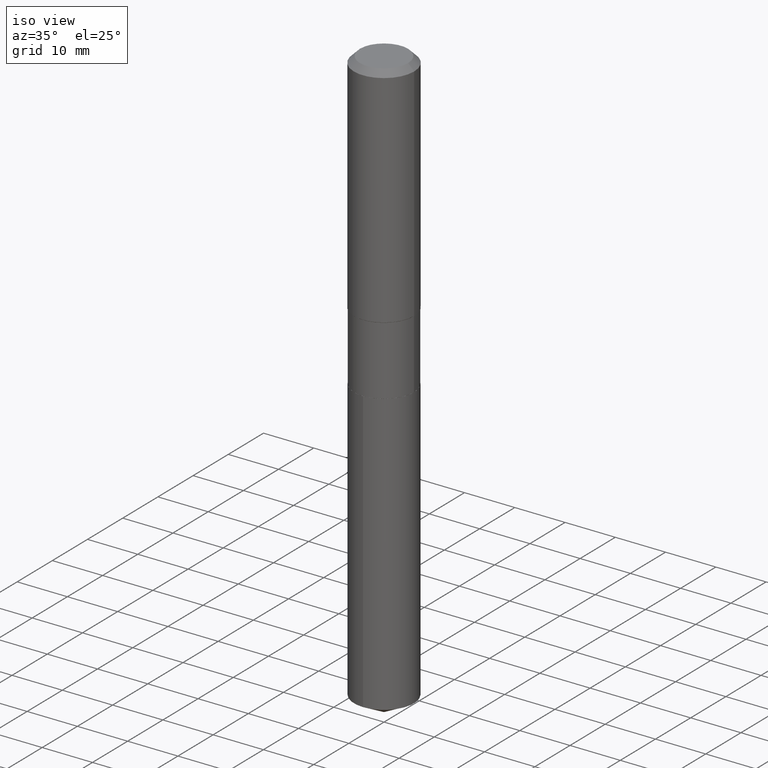
[diagram: clean part render]
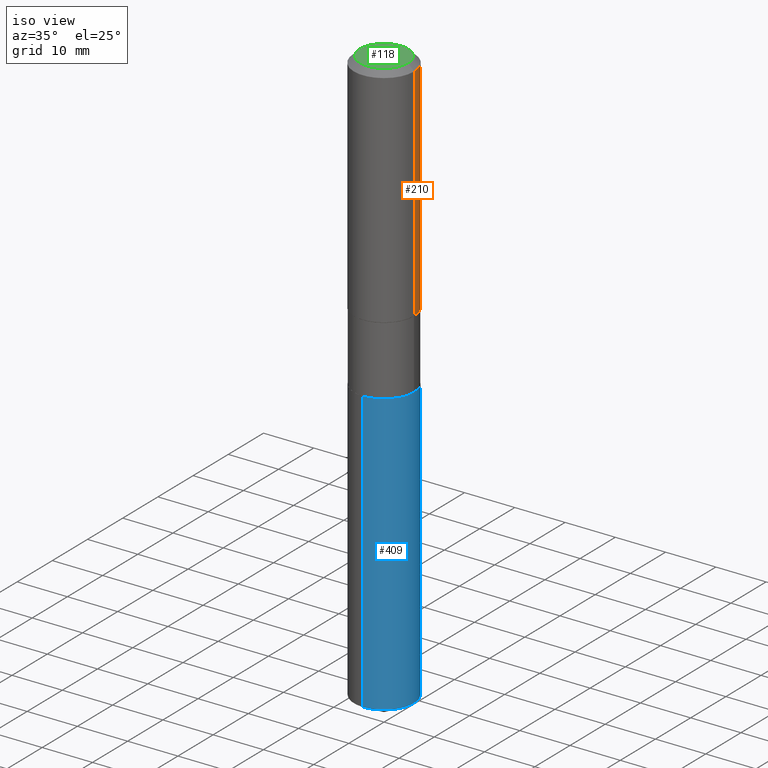
[diagram: same view with three faces highlighted in distinct colors, each labeled with its STEP entity id]
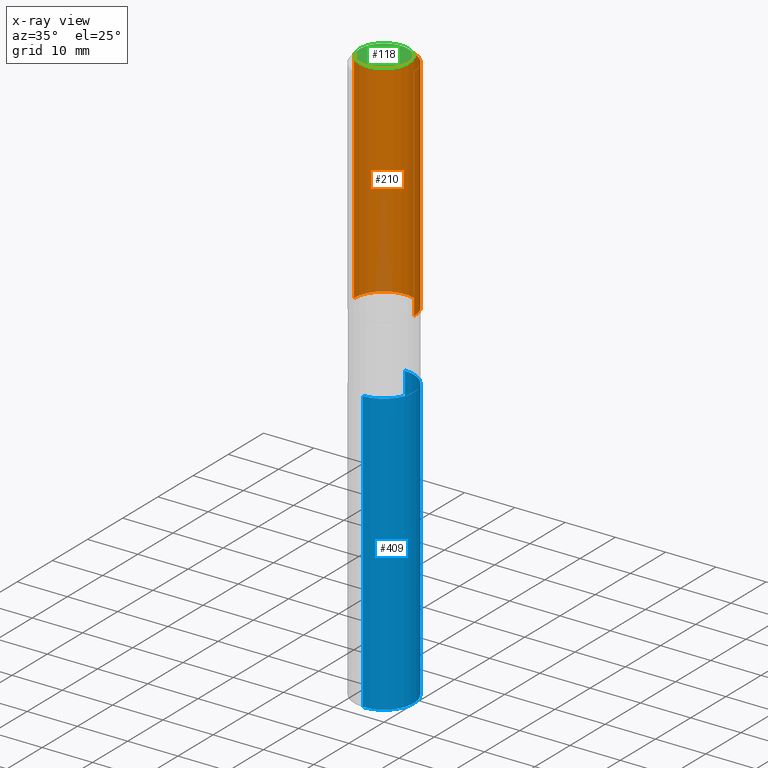
[diagram: x-ray of the same camera — body ghosted, the three highlighted faces saturated]
A machine part, iso view with three faces highlighted in distinct colors.
The next image is the same camera in x-ray (body ghosted, the three faces saturated) — at least one of them is partly hidden behind the body in this view.
Their STEP definitions:

[orange] entity #210 — the highlighted cylindrical surface (partial cylindrical patch) has radius 5.9995 mm, axis along (-0, 0, 1).
#5 = LINE ( 'NONE', #370, #457 ) ;
#7 = CIRCLE ( 'NONE', #440, 0.2362000000000002153 ) ;
#18 = AXIS2_PLACEMENT_3D ( 'NONE', #295, #218, #448 ) ;
#35 = VERTEX_POINT ( 'NONE', #125 ) ;
#42 = CARTESIAN_POINT ( 'NONE',  ( 0.2361999999999999933, -1.814313362916447440E-15, -0.04724000000000028177 ) ) ;
#61 = DIRECTION ( 'NONE',  ( -2.445468806185136597E-29, 3.491481338843145583E-15, 1.000000000000000000 ) ) ;
#63 = DIRECTION ( 'NONE',  ( 1.000000000000000000, -6.982962677686266711E-15, 0.000000000000000000 ) ) ;
#67 = CYLINDRICAL_SURFACE ( 'NONE', #368, 0.2362000000000001043 ) ;
#80 = EDGE_CURVE ( 'NONE', #143, #108, #7, .T. ) ;
#100 = DIRECTION ( 'NONE',  ( -2.445468806185136877E-29, 3.491481338843145188E-15, 1.000000000000000000 ) ) ;
#108 = VERTEX_POINT ( 'NONE', #483 ) ;
#125 = CARTESIAN_POINT ( 'NONE',  ( -0.2361999999999999933, -1.508355618690086330E-15, -0.04724000000000028177 ) ) ;
#129 = CARTESIAN_POINT ( 'NONE',  ( 0.000000000000000000, 0.000000000000000000, 0.000000000000000000 ) ) ;
#130 = DIRECTION ( 'NONE',  ( 1.000000000000000000, -6.982962677686266711E-15, 4.876176775795935793E-29 ) ) ;
#143 = VERTEX_POINT ( 'NONE', #320 ) ;
#157 = EDGE_CURVE ( 'NONE', #143, #337, #397, .T. ) ;
#165 = CARTESIAN_POINT ( 'NONE',  ( 0.2362000000000001043, -1.649375784469496920E-15, 1.151752954443000508E-29 ) ) ;
#177 = EDGE_LOOP ( 'NONE', ( #385, #184, #203, #223 ) ) ;
#184 = ORIENTED_EDGE ( 'NONE', *, *, #403, .T. ) ;
#203 = ORIENTED_EDGE ( 'NONE', *, *, #431, .F. ) ;
#210 = ADVANCED_FACE ( 'NONE', ( #401 ), #67, .T. ) ;
#218 = DIRECTION ( 'NONE',  ( -2.445468806185136597E-29, 3.491481338843145583E-15, 1.000000000000000000 ) ) ;
#223 = ORIENTED_EDGE ( 'NONE', *, *, #157, .F. ) ;
#243 = DIRECTION ( 'NONE',  ( -2.445468806185136597E-29, 3.491481338843145583E-15, 1.000000000000000000 ) ) ;
#252 = CARTESIAN_POINT ( 'NONE',  ( 4.348410357718098409E-29, -6.208377542663936505E-15, -1.778149999999999231 ) ) ;
#263 = CIRCLE ( 'NONE', #18, 0.2361999999999999933 ) ;
#287 = VECTOR ( 'NONE', #100, 39.37007874015748143 ) ;
#293 = DIRECTION ( 'NONE',  ( -2.445468806185136877E-29, 3.491481338843145188E-15, 1.000000000000000000 ) ) ;
#295 = CARTESIAN_POINT ( 'NONE',  ( 1.155239464041865506E-30, -1.649375784469511859E-16, -0.04724000000000028177 ) ) ;
#320 = CARTESIAN_POINT ( 'NONE',  ( 0.2362000000000002153, -7.857753327133433819E-15, -1.778149999999999231 ) ) ;
#337 = VERTEX_POINT ( 'NONE', #42 ) ;
#368 = AXIS2_PLACEMENT_3D ( 'NONE', #129, #243, #130 ) ;
#370 = CARTESIAN_POINT ( 'NONE',  ( -0.2362000000000001043, 1.678301941865357380E-15, -1.161852468318209317E-29 ) ) ;
#385 = ORIENTED_EDGE ( 'NONE', *, *, #80, .T. ) ;
#397 = LINE ( 'NONE', #165, #287 ) ;
#401 = FACE_OUTER_BOUND ( 'NONE', #177, .T. ) ;
#403 = EDGE_CURVE ( 'NONE', #108, #35, #5, .T. ) ;
#431 = EDGE_CURVE ( 'NONE', #337, #35, #263, .T. ) ;
#440 = AXIS2_PLACEMENT_3D ( 'NONE', #252, #61, #63 ) ;
#448 = DIRECTION ( 'NONE',  ( 1.000000000000000000, -6.982962677686266711E-15, 0.000000000000000000 ) ) ;
#457 = VECTOR ( 'NONE', #293, 39.37007874015748143 ) ;
#483 = CARTESIAN_POINT ( 'NONE',  ( -0.2362000000000002153, -4.530075600798577744E-15, -1.778149999999999231 ) ) ;

[blue] entity #409 — the highlighted cylindrical surface (edge-blend (fillet) strip) has radius 5.95 mm, axis along (-0, 0, 1).
#19 = VERTEX_POINT ( 'NONE', #160 ) ;
#26 = ORIENTED_EDGE ( 'NONE', *, *, #357, .F. ) ;
#32 = CARTESIAN_POINT ( 'NONE',  ( -1.635759007247950816E-15, -0.2342500000000080906, -2.318899999999998851 ) ) ;
#37 = VERTEX_POINT ( 'NONE', #348 ) ;
#40 = VECTOR ( 'NONE', #363, 39.37007874015748143 ) ;
#46 = LINE ( 'NONE', #418, #254 ) ;
#62 = EDGE_CURVE ( 'NONE', #37, #166, #46, .T. ) ;
#75 = DIRECTION ( 'NONE',  ( -2.445464024596642268E-29, 3.491488186350020456E-15, 1.000000000000000000 ) ) ;
#86 = CIRCLE ( 'NONE', #248, 0.2342500000000000138 ) ;
#139 = DIRECTION ( 'NONE',  ( -6.982962677686265133E-15, -1.000000000000000000, 3.498631368620187579E-15 ) ) ;
#141 = EDGE_CURVE ( 'NONE', #19, #37, #359, .T. ) ;
#160 = CARTESIAN_POINT ( 'NONE',  ( -1.635759007247896976E-15, -0.2342500000000157512, -4.521147065633297935 ) ) ;
#166 = VERTEX_POINT ( 'NONE', #280 ) ;
#178 = CYLINDRICAL_SURFACE ( 'NONE', #433, 0.2342500000000000138 ) ;
#188 = ORIENTED_EDGE ( 'NONE', *, *, #141, .T. ) ;
#191 = VERTEX_POINT ( 'NONE', #479 ) ;
#206 = LINE ( 'NONE', #32, #40 ) ;
#216 = FACE_OUTER_BOUND ( 'NONE', #350, .T. ) ;
#235 = ORIENTED_EDGE ( 'NONE', *, *, #261, .F. ) ;
#248 = AXIS2_PLACEMENT_3D ( 'NONE', #302, #75, #453 ) ;
#254 = VECTOR ( 'NONE', #464, 39.37007874015748143 ) ;
#261 = EDGE_CURVE ( 'NONE', #19, #191, #206, .T. ) ;
#280 = CARTESIAN_POINT ( 'NONE',  ( 1.664446358518145618E-15, 0.2342499999999919369, -2.318900000000000627 ) ) ;
#291 = DIRECTION ( 'NONE',  ( -2.445464024596642268E-29, 3.491488186350020456E-15, 1.000000000000000000 ) ) ;
#302 = CARTESIAN_POINT ( 'NONE',  ( 5.670797614662712652E-29, -8.096396076643368740E-15, -2.318899999999999739 ) ) ;
#331 = CARTESIAN_POINT ( 'NONE',  ( 5.670797614662712652E-29, -8.096396076643368740E-15, -2.318899999999999739 ) ) ;
#348 = CARTESIAN_POINT ( 'NONE',  ( 1.664446358518144829E-15, 0.2342499999999841931, -4.521147065633300599 ) ) ;
#350 = EDGE_LOOP ( 'NONE', ( #188, #484, #26, #235 ) ) ;
#357 = EDGE_CURVE ( 'NONE', #191, #166, #86, .T. ) ;
#359 = CIRCLE ( 'NONE', #381, 0.2342500000000000138 ) ;
#363 = DIRECTION ( 'NONE',  ( -2.445464024596642268E-29, 3.491488186350020456E-15, 1.000000000000000000 ) ) ;
#381 = AXIS2_PLACEMENT_3D ( 'NONE', #443, #291, #445 ) ;
#409 = ADVANCED_FACE ( 'NONE', ( #216 ), #178, .T. ) ;
#418 = CARTESIAN_POINT ( 'NONE',  ( 1.664446358518091187E-15, 0.2342499999999919091, -2.318900000000000627 ) ) ;
#433 = AXIS2_PLACEMENT_3D ( 'NONE', #331, #488, #139 ) ;
#443 = CARTESIAN_POINT ( 'NONE',  ( 1.105631358694246645E-28, -1.578551568972603113E-14, -4.521147065633298823 ) ) ;
#445 = DIRECTION ( 'NONE',  ( -6.982962677686265133E-15, -1.000000000000000000, 2.332420912413458386E-15 ) ) ;
#453 = DIRECTION ( 'NONE',  ( -6.982962677686265133E-15, -1.000000000000000000, 3.498631368620187579E-15 ) ) ;
#464 = DIRECTION ( 'NONE',  ( -2.445464024596642268E-29, 3.491488186350020456E-15, 1.000000000000000000 ) ) ;
#479 = CARTESIAN_POINT ( 'NONE',  ( -1.635759007247950816E-15, -0.2342500000000080906, -2.318899999999998851 ) ) ;
#484 = ORIENTED_EDGE ( 'NONE', *, *, #62, .T. ) ;
#488 = DIRECTION ( 'NONE',  ( -2.445464024596642268E-29, 3.491488186350020456E-15, 1.000000000000000000 ) ) ;

[green] entity #118 — the highlighted planar face has unit normal (0, -0, -1).
#6 = VERTEX_POINT ( 'NONE', #240 ) ;
#23 = CARTESIAN_POINT ( 'NONE',  ( -9.427742298522546243E-47, 1.346031739168365344E-32, 3.855188123715862256E-18 ) ) ;
#43 = EDGE_CURVE ( 'NONE', #106, #6, #321, .T. ) ;
#65 = CIRCLE ( 'NONE', #304, 0.1889600000000000168 ) ;
#104 = AXIS2_PLACEMENT_3D ( 'NONE', #200, #482, #473 ) ;
#106 = VERTEX_POINT ( 'NONE', #398 ) ;
#118 = ADVANCED_FACE ( 'NONE', ( #327 ), #361, .F. ) ;
#200 = CARTESIAN_POINT ( 'NONE',  ( -4.713871149261273121E-47, 6.730158695841826722E-33, 1.927594061857931128E-18 ) ) ;
#226 = EDGE_LOOP ( 'NONE', ( #344, #449 ) ) ;
#233 = DIRECTION ( 'NONE',  ( -2.445468806185136597E-29, 3.491481338843145583E-15, 1.000000000000000000 ) ) ;
#240 = CARTESIAN_POINT ( 'NONE',  ( 0.1889600000000000168, -1.540873453589747738E-15, 3.855188123725863225E-18 ) ) ;
#245 = DIRECTION ( 'NONE',  ( 1.000000000000000000, -6.982962677686266711E-15, 4.876185090822587894E-29 ) ) ;
#258 = EDGE_CURVE ( 'NONE', #6, #106, #65, .T. ) ;
#304 = AXIS2_PLACEMENT_3D ( 'NONE', #23, #395, #245 ) ;
#321 = CIRCLE ( 'NONE', #392, 0.1889600000000000168 ) ;
#327 = FACE_OUTER_BOUND ( 'NONE', #226, .T. ) ;
#344 = ORIENTED_EDGE ( 'NONE', *, *, #43, .T. ) ;
#361 = PLANE ( 'NONE',  #104 ) ;
#392 = AXIS2_PLACEMENT_3D ( 'NONE', #461, #233, #470 ) ;
#395 = DIRECTION ( 'NONE',  ( -2.445468806185136597E-29, 3.491481338843145583E-15, 1.000000000000000000 ) ) ;
#398 = CARTESIAN_POINT ( 'NONE',  ( -0.1889600000000000168, 1.401969416799070942E-15, 3.855188123706346622E-18 ) ) ;
#449 = ORIENTED_EDGE ( 'NONE', *, *, #258, .T. ) ;
#461 = CARTESIAN_POINT ( 'NONE',  ( -9.427742298522546243E-47, 1.346031739168365344E-32, 3.855188123715862256E-18 ) ) ;
#470 = DIRECTION ( 'NONE',  ( 1.000000000000000000, -6.982962677686266711E-15, 4.876185090822587894E-29 ) ) ;
#473 = DIRECTION ( 'NONE',  ( -1.000000000000000000, 6.982962677686265922E-15, -4.876176775795935793E-29 ) ) ;
#482 = DIRECTION ( 'NONE',  ( 2.438088387897960049E-29, -3.491481338843145188E-15, -1.000000000000000000 ) ) ;